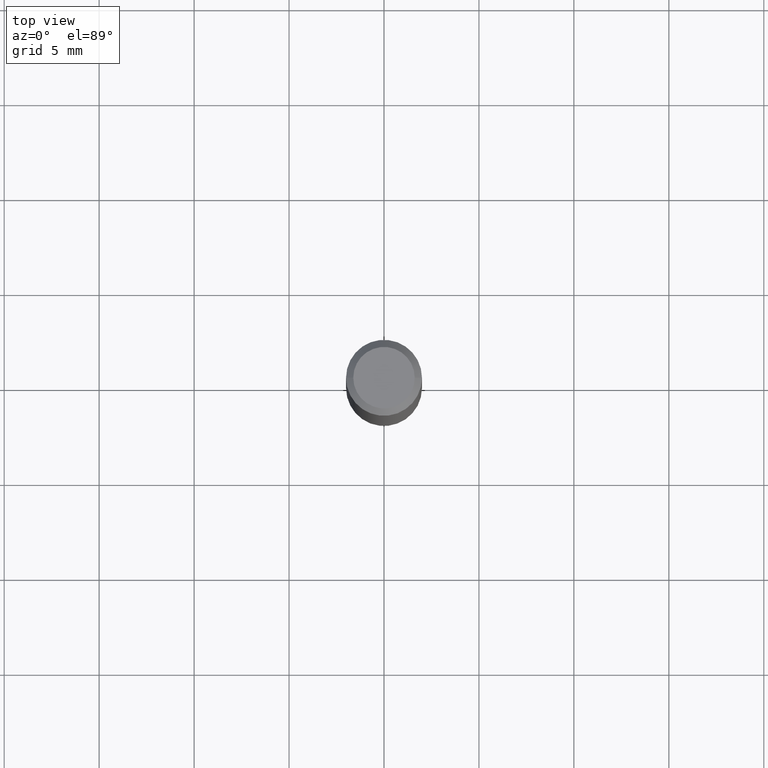
[diagram: clean part render]
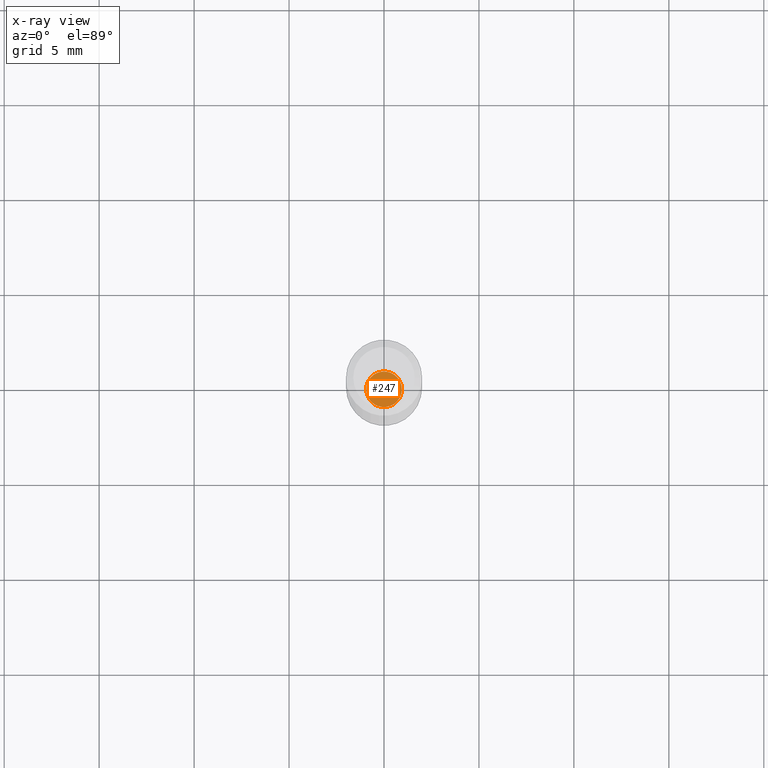
[diagram: x-ray — body ghosted, one internal face saturated and labeled with its STEP entity id]
A machine part, top view, then the same camera in x-ray: the body is ghosted and one INTERNAL B-rep face — a face not visible from any outside direction — is saturated and labeled: STEP entity #247.
In plain terms, the highlighted planar face has unit normal (-0, 0, 1).
Its self-contained STEP definition (entity closure, byte-faithful):
#1 = EDGE_CURVE ( 'NONE', #303, #388, #242, .T. ) ;
#25 = DIRECTION ( 'NONE',  ( -2.445468806185136597E-29, 3.491481338843145583E-15, 1.000000000000000000 ) ) ;
#50 = AXIS2_PLACEMENT_3D ( 'NONE', #428, #426, #106 ) ;
#61 = EDGE_CURVE ( 'NONE', #388, #303, #334, .T. ) ;
#66 = PLANE ( 'NONE',  #75 ) ;
#75 = AXIS2_PLACEMENT_3D ( 'NONE', #86, #195, #263 ) ;
#86 = CARTESIAN_POINT ( 'NONE',  ( 3.398712546836102570E-29, -4.852460764724203802E-15, -1.389799999999999924 ) ) ;
#106 = DIRECTION ( 'NONE',  ( 1.000000000000000000, -6.982962677686261189E-15, 0.000000000000000000 ) ) ;
#114 = ORIENTED_EDGE ( 'NONE', *, *, #61, .F. ) ;
#140 = ORIENTED_EDGE ( 'NONE', *, *, #1, .F. ) ;
#143 = AXIS2_PLACEMENT_3D ( 'NONE', #260, #25, #348 ) ;
#177 = EDGE_LOOP ( 'NONE', ( #140, #114 ) ) ;
#195 = DIRECTION ( 'NONE',  ( -2.438088387897960049E-29, 3.491481338843145188E-15, 1.000000000000000000 ) ) ;
#242 = CIRCLE ( 'NONE', #143, 0.03690000000000000224 ) ;
#247 = ADVANCED_FACE ( 'NONE', ( #302 ), #66, .F. ) ;
#260 = CARTESIAN_POINT ( 'NONE',  ( 3.398712546836102570E-29, -4.852460764724203802E-15, -1.389799999999999924 ) ) ;
#263 = DIRECTION ( 'NONE',  ( 1.000000000000000000, -6.982962677686265922E-15, 4.876176775795935793E-29 ) ) ;
#302 = FACE_OUTER_BOUND ( 'NONE', #177, .T. ) ;
#303 = VERTEX_POINT ( 'NONE', #420 ) ;
#334 = CIRCLE ( 'NONE', #50, 0.03690000000000000224 ) ;
#348 = DIRECTION ( 'NONE',  ( 1.000000000000000000, -6.982962677686261189E-15, 0.000000000000000000 ) ) ;
#386 = CARTESIAN_POINT ( 'NONE',  ( -0.03690000000000000224, -4.587621268054616109E-15, -1.389799999999999924 ) ) ;
#388 = VERTEX_POINT ( 'NONE', #386 ) ;
#420 = CARTESIAN_POINT ( 'NONE',  ( 0.03690000000000000224, -5.110132087530827195E-15, -1.389799999999999924 ) ) ;
#426 = DIRECTION ( 'NONE',  ( -2.445468806185136597E-29, 3.491481338843145583E-15, 1.000000000000000000 ) ) ;
#428 = CARTESIAN_POINT ( 'NONE',  ( 3.398712546836102570E-29, -4.852460764724203802E-15, -1.389799999999999924 ) ) ;